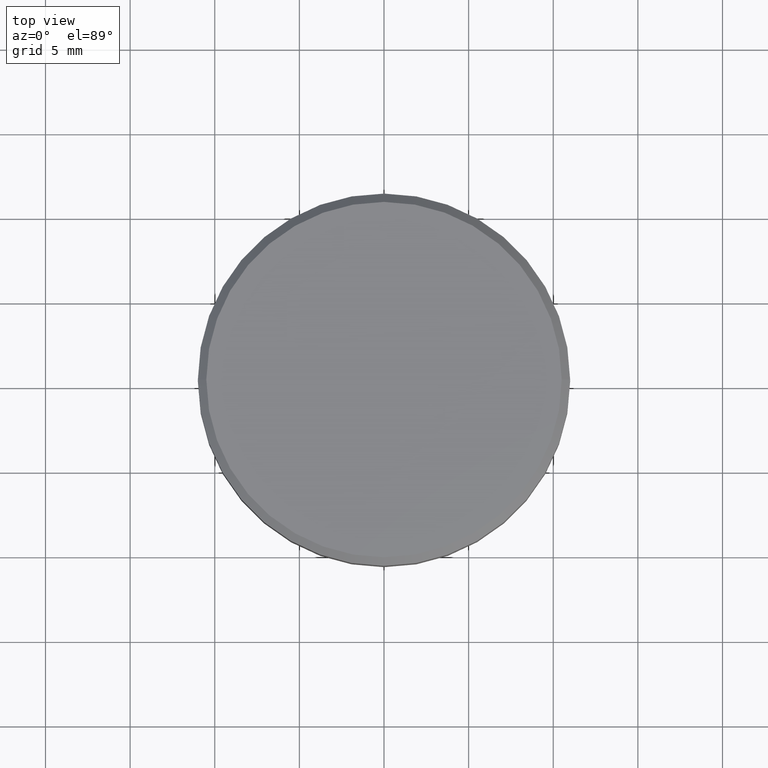
[diagram: clean part render]
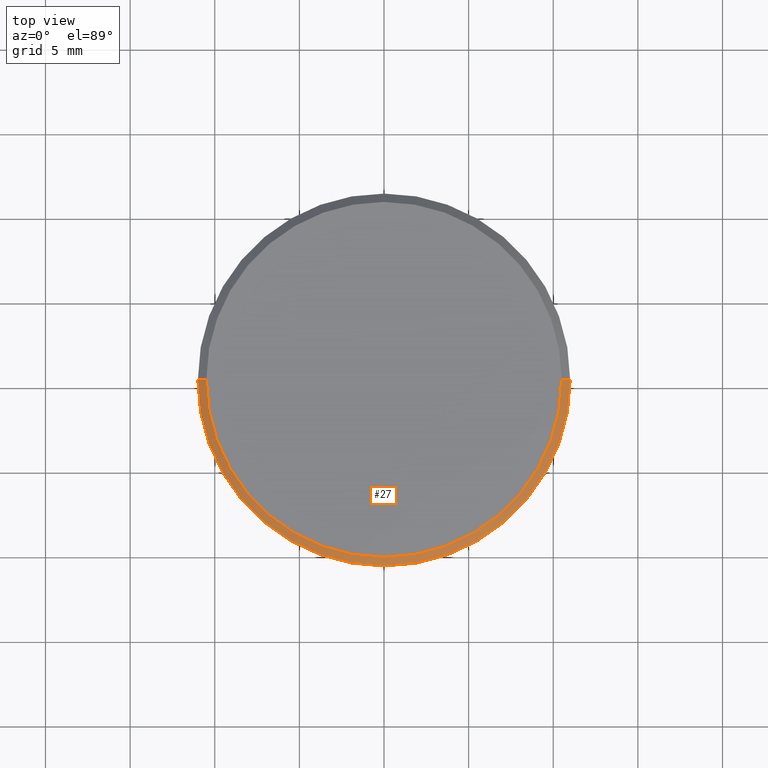
[diagram: same view with one face highlighted and labeled with its STEP entity id]
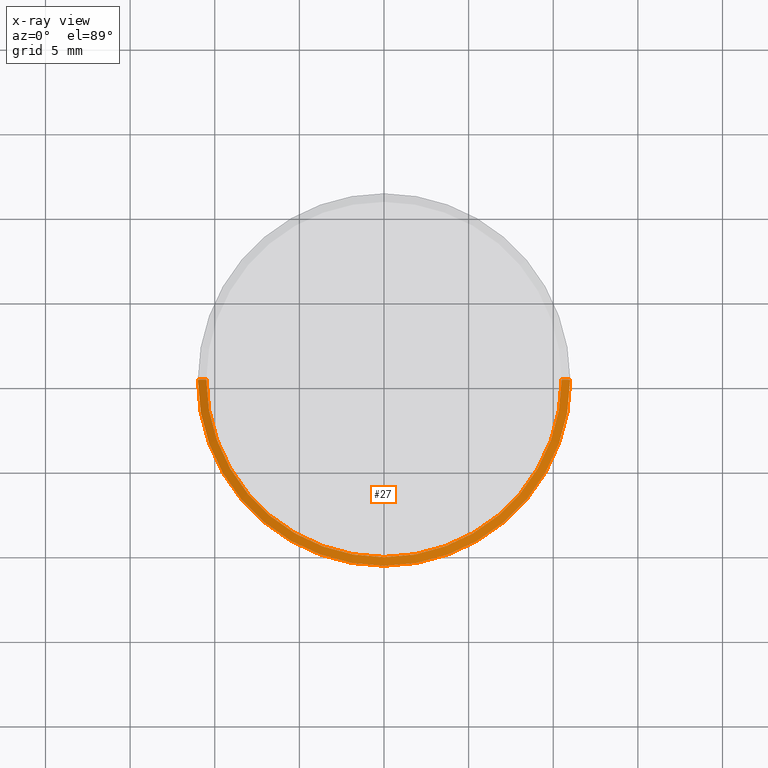
[diagram: x-ray of the same camera — body ghosted, the highlighted face saturated]
A machine part, top view. The second image highlights one B-rep face of the part: STEP entity #27.
The next image is the same camera in x-ray: the body ghosted, the highlighted face saturated — about 0% of this face is hidden behind the body in this view.
In plain terms, the highlighted conical surface has half-angle 45 deg.
Its self-contained STEP definition (entity closure, byte-faithful):
#3 = CARTESIAN_POINT ( 'NONE',  ( 10.49999999999999467, 1.285879139104720239E-15, 0.000000000000000000 ) ) ;
#27 = ADVANCED_FACE ( 'NONE', ( #354 ), #195, .T. ) ;
#41 = AXIS2_PLACEMENT_3D ( 'NONE', #287, #258, #262 ) ;
#50 = VECTOR ( 'NONE', #330, 999.9999999999998863 ) ;
#63 = VERTEX_POINT ( 'NONE', #104 ) ;
#64 = LINE ( 'NONE', #3, #78 ) ;
#69 = EDGE_CURVE ( 'NONE', #159, #156, #226, .T. ) ;
#78 = VECTOR ( 'NONE', #103, 999.9999999999998863 ) ;
#83 = DIRECTION ( 'NONE',  ( -1.000000000000000000, 0.000000000000000000, 0.000000000000000000 ) ) ;
#92 = ORIENTED_EDGE ( 'NONE', *, *, #251, .F. ) ;
#99 = AXIS2_PLACEMENT_3D ( 'NONE', #147, #394, #183 ) ;
#100 = ORIENTED_EDGE ( 'NONE', *, *, #69, .F. ) ;
#103 = DIRECTION ( 'NONE',  ( 0.7071067811865425767, 8.659560562354873694E-17, -0.7071067811865525687 ) ) ;
#104 = CARTESIAN_POINT ( 'NONE',  ( -11.00000000000000178, 1.347111479062088602E-15, -0.5000000000000125455 ) ) ;
#132 = EDGE_CURVE ( 'NONE', #156, #294, #64, .T. ) ;
#147 = CARTESIAN_POINT ( 'NONE',  ( 0.000000000000000000, 0.000000000000000000, -0.5000000000000125455 ) ) ;
#156 = VERTEX_POINT ( 'NONE', #353 ) ;
#159 = VERTEX_POINT ( 'NONE', #198 ) ;
#182 = DIRECTION ( 'NONE',  ( 0.000000000000000000, 0.000000000000000000, -1.000000000000000000 ) ) ;
#183 = DIRECTION ( 'NONE',  ( 1.000000000000000000, 0.000000000000000000, 0.000000000000000000 ) ) ;
#193 = EDGE_LOOP ( 'NONE', ( #407, #100, #327, #92 ) ) ;
#195 = CONICAL_SURFACE ( 'NONE', #305, 10.49999999999999467, 0.7853981633974412846 ) ;
#198 = CARTESIAN_POINT ( 'NONE',  ( -10.49999999999999467, 0.000000000000000000, 0.000000000000000000 ) ) ;
#211 = CARTESIAN_POINT ( 'NONE',  ( -10.49999999999999467, 0.000000000000000000, 0.000000000000000000 ) ) ;
#214 = CIRCLE ( 'NONE', #99, 11.00000000000000178 ) ;
#217 = CARTESIAN_POINT ( 'NONE',  ( 11.00000000000000178, 0.000000000000000000, -0.5000000000000125455 ) ) ;
#226 = CIRCLE ( 'NONE', #41, 10.49999999999999467 ) ;
#251 = EDGE_CURVE ( 'NONE', #294, #63, #214, .T. ) ;
#258 = DIRECTION ( 'NONE',  ( -0.000000000000000000, -0.000000000000000000, 1.000000000000000000 ) ) ;
#262 = DIRECTION ( 'NONE',  ( 1.000000000000000000, 0.000000000000000000, 0.000000000000000000 ) ) ;
#267 = CARTESIAN_POINT ( 'NONE',  ( 0.000000000000000000, 0.000000000000000000, 0.000000000000000000 ) ) ;
#287 = CARTESIAN_POINT ( 'NONE',  ( 0.000000000000000000, 0.000000000000000000, 0.000000000000000000 ) ) ;
#294 = VERTEX_POINT ( 'NONE', #217 ) ;
#305 = AXIS2_PLACEMENT_3D ( 'NONE', #267, #182, #83 ) ;
#327 = ORIENTED_EDGE ( 'NONE', *, *, #382, .T. ) ;
#330 = DIRECTION ( 'NONE',  ( -0.7071067811865425767, 0.000000000000000000, -0.7071067811865525687 ) ) ;
#353 = CARTESIAN_POINT ( 'NONE',  ( 10.49999999999999467, 1.316495309083404420E-15, 0.000000000000000000 ) ) ;
#354 = FACE_OUTER_BOUND ( 'NONE', #193, .T. ) ;
#357 = LINE ( 'NONE', #211, #50 ) ;
#382 = EDGE_CURVE ( 'NONE', #159, #63, #357, .T. ) ;
#394 = DIRECTION ( 'NONE',  ( 0.000000000000000000, 0.000000000000000000, -1.000000000000000000 ) ) ;
#407 = ORIENTED_EDGE ( 'NONE', *, *, #132, .F. ) ;